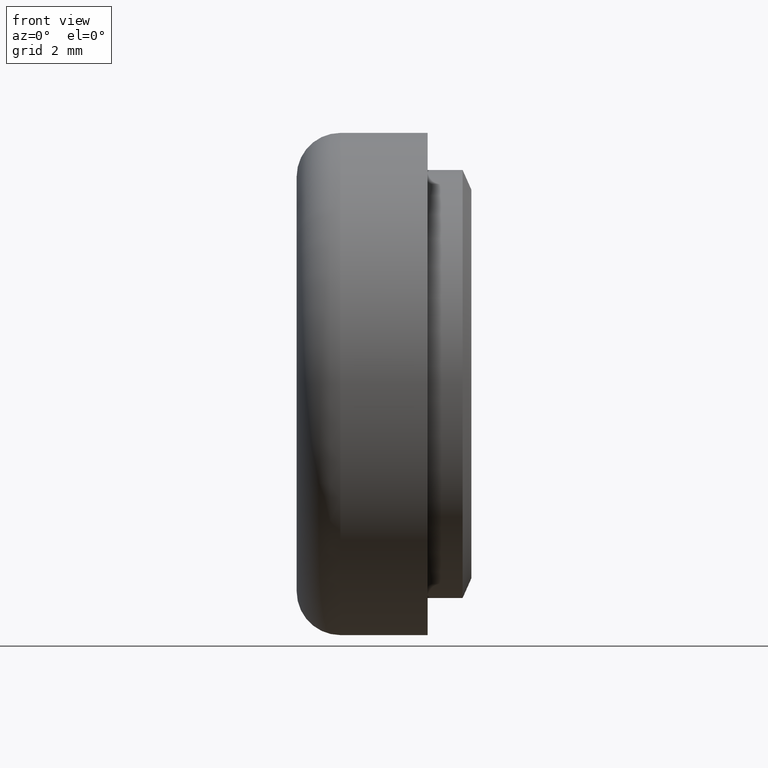
[diagram: clean part render]
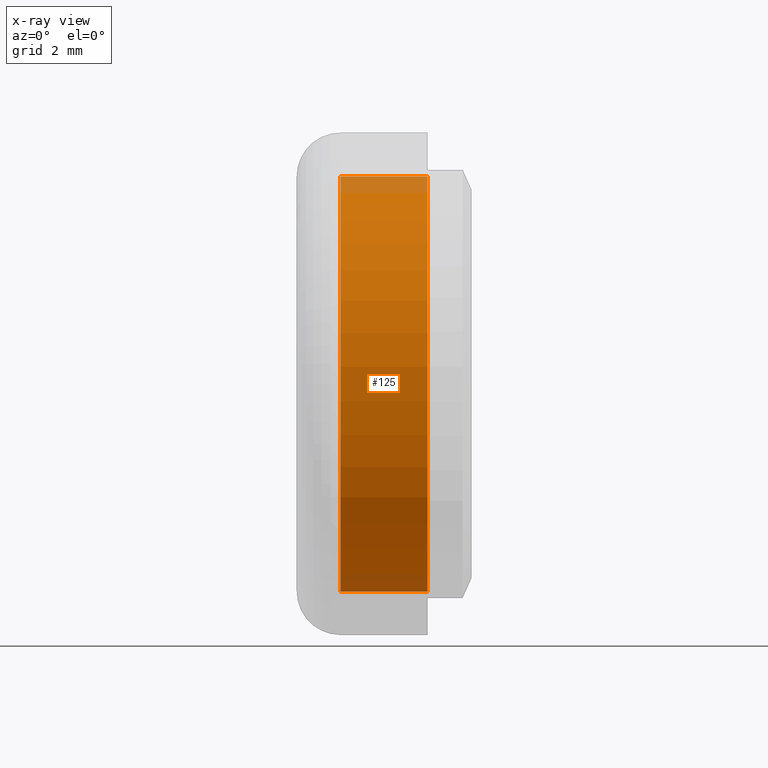
[diagram: x-ray — body ghosted, one internal face saturated and labeled with its STEP entity id]
A machine part, front view, then the same camera in x-ray: the body is ghosted and one INTERNAL B-rep face — a face not visible from any outside direction — is saturated and labeled: STEP entity #125.
In plain terms, the highlighted cylindrical surface (partial cylindrical patch) has radius 4.75 mm, axis along (-1, -0, -0).
Its self-contained STEP definition (entity closure, byte-faithful):
#9 = DIRECTION ( 'NONE',  ( -1.000000000000000000, -0.0000000000000000000, -0.0000000000000000000 ) ) ;
#12 = CARTESIAN_POINT ( 'NONE',  ( 2.000000000000001800, 0.0000000000000000000, 4.749999999999999100 ) ) ;
#19 = VERTEX_POINT ( 'NONE', #694 ) ;
#23 = CIRCLE ( 'NONE', #475, 4.750000000000000000 ) ;
#32 = EDGE_CURVE ( 'NONE', #85, #19, #387, .T. ) ;
#36 = EDGE_CURVE ( 'NONE', #612, #85, #540, .T. ) ;
#85 = VERTEX_POINT ( 'NONE', #12 ) ;
#102 = EDGE_CURVE ( 'NONE', #612, #293, #115, .T. ) ;
#115 = LINE ( 'NONE', #467, #412 ) ;
#122 = CARTESIAN_POINT ( 'NONE',  ( 0.0000000000000000000, 5.817072295949927400E-016, -4.750000000000000000 ) ) ;
#124 = ORIENTED_EDGE ( 'NONE', *, *, #32, .T. ) ;
#125 = ADVANCED_FACE ( 'NONE', ( #254 ), #377, .T. ) ;
#208 = CARTESIAN_POINT ( 'NONE',  ( -88.98999999999999500, 0.0000000000000000000, 4.749999999999999100 ) ) ;
#237 = CARTESIAN_POINT ( 'NONE',  ( 2.000000000000001800, 0.0000000000000000000, 0.0000000000000000000 ) ) ;
#247 = VECTOR ( 'NONE', #492, 1000.000000000000000 ) ;
#251 = DIRECTION ( 'NONE',  ( 0.0000000000000000000, 0.0000000000000000000, 1.000000000000000000 ) ) ;
#254 = FACE_OUTER_BOUND ( 'NONE', #669, .T. ) ;
#268 = EDGE_CURVE ( 'NONE', #293, #19, #23, .T. ) ;
#275 = AXIS2_PLACEMENT_3D ( 'NONE', #640, #473, #251 ) ;
#289 = CARTESIAN_POINT ( 'NONE',  ( 2.000000000000001800, 5.817072295949926400E-016, -4.749999999999999100 ) ) ;
#292 = ORIENTED_EDGE ( 'NONE', *, *, #102, .F. ) ;
#293 = VERTEX_POINT ( 'NONE', #122 ) ;
#299 = DIRECTION ( 'NONE',  ( 0.0000000000000000000, 0.0000000000000000000, 1.000000000000000000 ) ) ;
#345 = CARTESIAN_POINT ( 'NONE',  ( 0.0000000000000000000, 0.0000000000000000000, 0.0000000000000000000 ) ) ;
#377 = CYLINDRICAL_SURFACE ( 'NONE', #275, 4.749999999999999100 ) ;
#387 = LINE ( 'NONE', #208, #247 ) ;
#390 = ORIENTED_EDGE ( 'NONE', *, *, #268, .F. ) ;
#399 = DIRECTION ( 'NONE',  ( 0.0000000000000000000, 0.0000000000000000000, 1.000000000000000000 ) ) ;
#409 = AXIS2_PLACEMENT_3D ( 'NONE', #237, #631, #299 ) ;
#412 = VECTOR ( 'NONE', #518, 1000.000000000000000 ) ;
#467 = CARTESIAN_POINT ( 'NONE',  ( -88.98999999999999500, 5.817072295949926400E-016, -4.749999999999999100 ) ) ;
#473 = DIRECTION ( 'NONE',  ( -1.000000000000000000, -0.0000000000000000000, -0.0000000000000000000 ) ) ;
#475 = AXIS2_PLACEMENT_3D ( 'NONE', #345, #9, #399 ) ;
#492 = DIRECTION ( 'NONE',  ( -1.000000000000000000, -0.0000000000000000000, -0.0000000000000000000 ) ) ;
#518 = DIRECTION ( 'NONE',  ( -1.000000000000000000, -0.0000000000000000000, -0.0000000000000000000 ) ) ;
#540 = CIRCLE ( 'NONE', #409, 4.749999999999999100 ) ;
#612 = VERTEX_POINT ( 'NONE', #289 ) ;
#631 = DIRECTION ( 'NONE',  ( -1.000000000000000000, -0.0000000000000000000, -0.0000000000000000000 ) ) ;
#640 = CARTESIAN_POINT ( 'NONE',  ( -88.98999999999999500, 0.0000000000000000000, 0.0000000000000000000 ) ) ;
#656 = ORIENTED_EDGE ( 'NONE', *, *, #36, .T. ) ;
#669 = EDGE_LOOP ( 'NONE', ( #292, #656, #124, #390 ) ) ;
#694 = CARTESIAN_POINT ( 'NONE',  ( 0.0000000000000000000, 0.0000000000000000000, 4.750000000000000000 ) ) ;